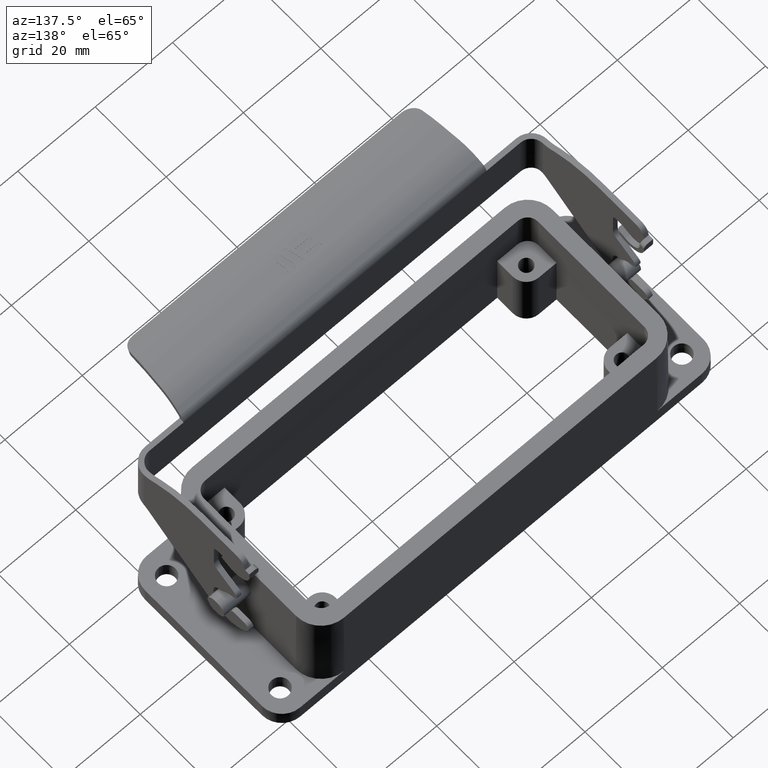
[diagram: clean part render]
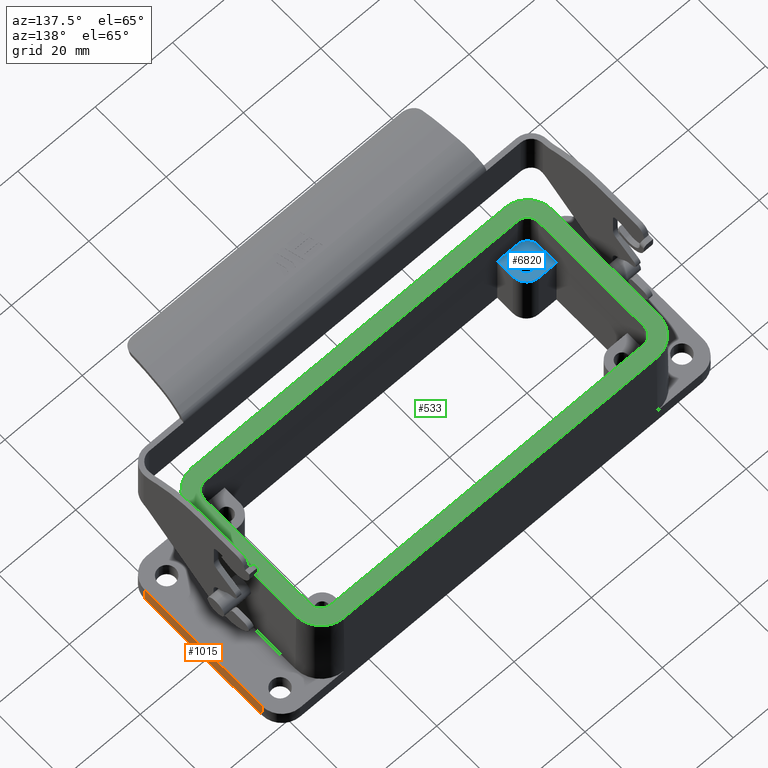
[diagram: same view with three faces highlighted in distinct colors, each labeled with its STEP entity id]
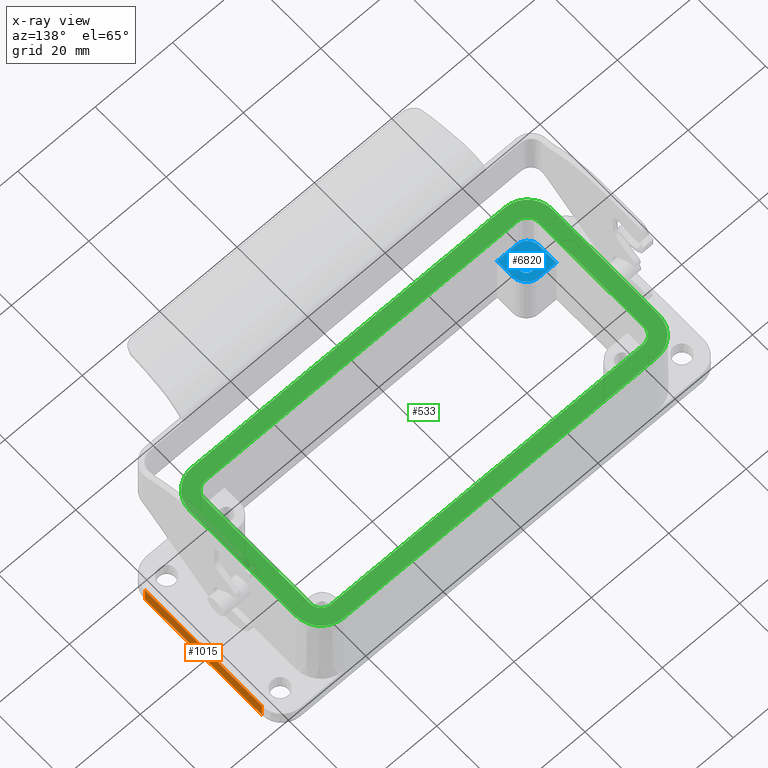
[diagram: x-ray of the same camera — body ghosted, the three highlighted faces saturated]
A machine part, auxiliary view with three faces highlighted in distinct colors.
The next image is the same camera in x-ray (body ghosted, the three faces saturated) — at least one of them is partly hidden behind the body in this view.
Their STEP definitions:

[orange] entity #1015 — the highlighted planar face has unit normal (1, 0, 0.0087).
#237 = LINE ( 'NONE', #270, #4034 ) ;
#270 = CARTESIAN_POINT ( 'NONE',  ( 1.717904678252149431, -0.8464566929133858775, -1.129921259842519676 ) ) ;
#522 = ORIENTED_EDGE ( 'NONE', *, *, #2507, .T. ) ;
#571 = LINE ( 'NONE', #2651, #3012 ) ;
#754 = PLANE ( 'NONE',  #6135 ) ;
#792 = FACE_OUTER_BOUND ( 'NONE', #2541, .T. ) ;
#1015 = ADVANCED_FACE ( 'NONE', ( #792 ), #754, .T. ) ;
#1350 = DIRECTION ( 'NONE',  ( -0.000000000000000000, -1.000000000000000000, -0.000000000000000000 ) ) ;
#1712 = CARTESIAN_POINT ( 'NONE',  ( 173.1532023753757414, 0.6496062992126196978, -19645.66929133858503 ) ) ;
#1835 = CARTESIAN_POINT ( 'NONE',  ( 1.712598425197484397, -0.6279939528609369548, -0.5218848850638660997 ) ) ;
#2133 = LINE ( 'NONE', #1712, #5036 ) ;
#2154 = LINE ( 'NONE', #5352, #5726 ) ;
#2208 = DIRECTION ( 'NONE',  ( 0.008726535488402659135, 1.068692375351810209E-18, -0.9999619230642582401 ) ) ;
#2308 = DIRECTION ( 'NONE',  ( 0.008726535498373934677, 0.000000000000000000, -0.9999619230641711987 ) ) ;
#2507 = EDGE_CURVE ( 'NONE', #4333, #5691, #571, .T. ) ;
#2541 = EDGE_LOOP ( 'NONE', ( #3339, #2938, #6055, #522 ) ) ;
#2651 = CARTESIAN_POINT ( 'NONE',  ( 1.712598425197484397, -0.6496062992125984925, -0.5218848850638660997 ) ) ;
#2843 = DIRECTION ( 'NONE',  ( 0.9999619230641713097, 0.000000000000000000, 0.008726535498373936411 ) ) ;
#2938 = ORIENTED_EDGE ( 'NONE', *, *, #5491, .F. ) ;
#3012 = VECTOR ( 'NONE', #4952, 39.37007874015748143 ) ;
#3049 = CARTESIAN_POINT ( 'NONE',  ( 1.717904678252152095, -0.6496062992125984925, -1.129921259842811665 ) ) ;
#3339 = ORIENTED_EDGE ( 'NONE', *, *, #4504, .F. ) ;
#3828 = VERTEX_POINT ( 'NONE', #5052 ) ;
#4005 = CARTESIAN_POINT ( 'NONE',  ( 1.719278988136649033, 0.6496062992125984925, -1.287401574802247373 ) ) ;
#4034 = VECTOR ( 'NONE', #1350, 39.37007874015748143 ) ;
#4333 = VERTEX_POINT ( 'NONE', #3049 ) ;
#4504 = EDGE_CURVE ( 'NONE', #7092, #5691, #2154, .T. ) ;
#4952 = DIRECTION ( 'NONE',  ( 0.008726535498373934677, 0.000000000000000000, -0.9999619230641711987 ) ) ;
#5036 = VECTOR ( 'NONE', #2208, 39.37007874015748854 ) ;
#5052 = CARTESIAN_POINT ( 'NONE',  ( 1.717904678249136063, 0.6496062992125984925, -1.129921259843103432 ) ) ;
#5352 = CARTESIAN_POINT ( 'NONE',  ( 1.719278988140460873, -0.8464566929133858775, -1.287401574803149984 ) ) ;
#5491 = EDGE_CURVE ( 'NONE', #3828, #7092, #2133, .T. ) ;
#5691 = VERTEX_POINT ( 'NONE', #5924 ) ;
#5726 = VECTOR ( 'NONE', #6395, 39.37007874015748143 ) ;
#5924 = CARTESIAN_POINT ( 'NONE',  ( 1.719278988140455100, -0.6496062992125984925, -1.287401574802698567 ) ) ;
#6055 = ORIENTED_EDGE ( 'NONE', *, *, #6333, .T. ) ;
#6135 = AXIS2_PLACEMENT_3D ( 'NONE', #1835, #2843, #2308 ) ;
#6333 = EDGE_CURVE ( 'NONE', #3828, #4333, #237, .T. ) ;
#6395 = DIRECTION ( 'NONE',  ( -0.000000000000000000, -1.000000000000000000, -0.000000000000000000 ) ) ;
#7092 = VERTEX_POINT ( 'NONE', #4005 ) ;

[blue] entity #6820 — the highlighted planar face has unit normal (0, 0, 1).
#9 = AXIS2_PLACEMENT_3D ( 'NONE', #3317, #589, #2277 ) ;
#78 = CARTESIAN_POINT ( 'NONE',  ( -2.122047244094487972, -0.5905511811039803050, -0.6377952755915824445 ) ) ;
#256 = EDGE_CURVE ( 'NONE', #3245, #343, #1824, .T. ) ;
#301 = CARTESIAN_POINT ( 'NONE',  ( -1.917322834645669660, -0.5314960629934921688, -0.6377952755905511584 ) ) ;
#334 = CIRCLE ( 'NONE', #2060, 0.1377952755905512972 ) ;
#343 = VERTEX_POINT ( 'NONE', #301 ) ;
#400 = PLANE ( 'NONE',  #1493 ) ;
#589 = DIRECTION ( 'NONE',  ( -0.000000000000000000, -0.000000000000000000, -1.000000000000000000 ) ) ;
#623 = DIRECTION ( 'NONE',  ( 0.000000000000000000, 0.000000000000000000, 1.000000000000000000 ) ) ;
#663 = ORIENTED_EDGE ( 'NONE', *, *, #256, .T. ) ;
#708 = LINE ( 'NONE', #6746, #2613 ) ;
#923 = CARTESIAN_POINT ( 'NONE',  ( -2.236063104610441332, -0.7007874015764212761, -0.6377952755905511584 ) ) ;
#1111 = ORIENTED_EDGE ( 'NONE', *, *, #6976, .F. ) ;
#1157 = EDGE_CURVE ( 'NONE', #4786, #6256, #3046, .T. ) ;
#1261 = CARTESIAN_POINT ( 'NONE',  ( -1.992125984251968740, -0.5314960629934921688, -0.6377952755905511584 ) ) ;
#1486 = AXIS2_PLACEMENT_3D ( 'NONE', #78, #2168, #4363 ) ;
#1493 = AXIS2_PLACEMENT_3D ( 'NONE', #5974, #623, #2778 ) ;
#1587 = DIRECTION ( 'NONE',  ( 1.000000000000000000, 0.000000000000000000, -0.000000000000000000 ) ) ;
#1629 = CARTESIAN_POINT ( 'NONE',  ( -2.055118110236220819, -0.3937007874029409549, -0.6377952755905511584 ) ) ;
#1824 = LINE ( 'NONE', #4018, #3381 ) ;
#1830 = VERTEX_POINT ( 'NONE', #6640 ) ;
#1964 = DIRECTION ( 'NONE',  ( 1.000000000000000000, 0.000000000000000000, 0.000000000000000000 ) ) ;
#2060 = AXIS2_PLACEMENT_3D ( 'NONE', #5478, #4328, #6519 ) ;
#2142 = VERTEX_POINT ( 'NONE', #1629 ) ;
#2168 = DIRECTION ( 'NONE',  ( -0.000000000000000000, -0.000000000000000000, 1.000000000000000000 ) ) ;
#2277 = DIRECTION ( 'NONE',  ( 1.000000000000000000, 0.000000000000000000, 0.000000000000000000 ) ) ;
#2613 = VECTOR ( 'NONE', #5668, 39.37007874015748143 ) ;
#2743 = LINE ( 'NONE', #6511, #5480 ) ;
#2751 = VERTEX_POINT ( 'NONE', #3104 ) ;
#2778 = DIRECTION ( 'NONE',  ( 1.000000000000000000, 0.000000000000000000, -0.000000000000000000 ) ) ;
#2793 = DIRECTION ( 'NONE',  ( 0.000000000000000000, 1.000000000000000000, -0.000000000000000000 ) ) ;
#3046 = LINE ( 'NONE', #923, #6601 ) ;
#3104 = CARTESIAN_POINT ( 'NONE',  ( -2.122047244094487972, -0.7045670416199419916, -0.6377952755910667459 ) ) ;
#3128 = FACE_OUTER_BOUND ( 'NONE', #5038, .T. ) ;
#3148 = EDGE_CURVE ( 'NONE', #6256, #2142, #2743, .T. ) ;
#3245 = VERTEX_POINT ( 'NONE', #3694 ) ;
#3317 = CARTESIAN_POINT ( 'NONE',  ( -2.055118110236220819, -0.5314960629934921688, -0.6377952755905511584 ) ) ;
#3381 = VECTOR ( 'NONE', #2793, 39.37007874015748143 ) ;
#3394 = EDGE_LOOP ( 'NONE', ( #5510, #5210 ) ) ;
#3618 = CARTESIAN_POINT ( 'NONE',  ( -2.055118110236220819, -0.5314960629934921688, -0.6377952755905511584 ) ) ;
#3686 = EDGE_CURVE ( 'NONE', #5931, #1830, #4684, .T. ) ;
#3694 = CARTESIAN_POINT ( 'NONE',  ( -1.917322834645669660, -0.7045670416199328878, -0.6377952755905511584 ) ) ;
#4018 = CARTESIAN_POINT ( 'NONE',  ( -1.917322834645669660, 0.7045670416172008510, -0.6377952755905511584 ) ) ;
#4328 = DIRECTION ( 'NONE',  ( 0.000000000000000000, 0.000000000000000000, -1.000000000000000000 ) ) ;
#4329 = DIRECTION ( 'NONE',  ( -0.000000000000000000, -0.000000000000000000, -1.000000000000000000 ) ) ;
#4363 = DIRECTION ( 'NONE',  ( -1.000000000000000000, 0.000000000000000000, 0.000000000000000000 ) ) ;
#4625 = ORIENTED_EDGE ( 'NONE', *, *, #1157, .F. ) ;
#4669 = CARTESIAN_POINT ( 'NONE',  ( -2.236063104609320895, -0.5905511811039803050, -0.6377952755896461046 ) ) ;
#4684 = CIRCLE ( 'NONE', #5365, 0.06299212598425185661 ) ;
#4786 = VERTEX_POINT ( 'NONE', #4669 ) ;
#5038 = EDGE_LOOP ( 'NONE', ( #663, #1111, #6259, #4625, #5838, #6689 ) ) ;
#5131 = EDGE_CURVE ( 'NONE', #3245, #2751, #708, .T. ) ;
#5210 = ORIENTED_EDGE ( 'NONE', *, *, #6848, .T. ) ;
#5293 = CIRCLE ( 'NONE', #9, 0.06299212598425185661 ) ;
#5330 = FACE_BOUND ( 'NONE', #3394, .T. ) ;
#5365 = AXIS2_PLACEMENT_3D ( 'NONE', #3618, #4329, #1964 ) ;
#5478 = CARTESIAN_POINT ( 'NONE',  ( -2.055118110236220819, -0.5314960629934921688, -0.6377952755905511584 ) ) ;
#5480 = VECTOR ( 'NONE', #1587, 39.37007874015748143 ) ;
#5510 = ORIENTED_EDGE ( 'NONE', *, *, #3686, .T. ) ;
#5570 = CARTESIAN_POINT ( 'NONE',  ( -2.236063104610441332, -0.3937007874029409549, -0.6377952755905511584 ) ) ;
#5668 = DIRECTION ( 'NONE',  ( -1.000000000000000000, 0.000000000000000000, -0.000000000000000000 ) ) ;
#5782 = DIRECTION ( 'NONE',  ( 0.000000000000000000, 1.000000000000000000, 0.000000000000000000 ) ) ;
#5838 = ORIENTED_EDGE ( 'NONE', *, *, #6907, .T. ) ;
#5931 = VERTEX_POINT ( 'NONE', #1261 ) ;
#5974 = CARTESIAN_POINT ( 'NONE',  ( -3.106299212598425896, 0.5314960629921260393, -0.6377952755905511584 ) ) ;
#6256 = VERTEX_POINT ( 'NONE', #5570 ) ;
#6259 = ORIENTED_EDGE ( 'NONE', *, *, #3148, .F. ) ;
#6511 = CARTESIAN_POINT ( 'NONE',  ( 0.3699213723269763610, -0.3937007874029409549, -0.6377952755905511584 ) ) ;
#6519 = DIRECTION ( 'NONE',  ( -1.000000000000000000, 0.000000000000000000, 0.000000000000000000 ) ) ;
#6601 = VECTOR ( 'NONE', #5782, 39.37007874015748143 ) ;
#6640 = CARTESIAN_POINT ( 'NONE',  ( -2.118110236220472675, -0.5314960629934921688, -0.6377952755905511584 ) ) ;
#6689 = ORIENTED_EDGE ( 'NONE', *, *, #5131, .F. ) ;
#6746 = CARTESIAN_POINT ( 'NONE',  ( -2.106299212598425008, -0.7045670416199328878, -0.6377952755905511584 ) ) ;
#6820 = ADVANCED_FACE ( 'NONE', ( #3128, #5330 ), #400, .T. ) ;
#6848 = EDGE_CURVE ( 'NONE', #1830, #5931, #5293, .T. ) ;
#6887 = CIRCLE ( 'NONE', #1486, 0.1140158605115889484 ) ;
#6907 = EDGE_CURVE ( 'NONE', #4786, #2751, #6887, .T. ) ;
#6976 = EDGE_CURVE ( 'NONE', #2142, #343, #334, .T. ) ;

[green] entity #533 — the highlighted planar face has unit normal (0, 0, -1).
#15 = DIRECTION ( 'NONE',  ( 0.000000000000000000, 1.000000000000000000, 0.000000000000000000 ) ) ;
#42 = CARTESIAN_POINT ( 'NONE',  ( 4.217973302217638463E-16, 0.8464566929134409445, -0.2047244094488189226 ) ) ;
#77 = DIRECTION ( 'NONE',  ( 0.000000000000000000, 0.000000000000000000, -1.000000000000000000 ) ) ;
#86 = DIRECTION ( 'NONE',  ( -1.000000000000000000, 0.000000000000000000, 0.000000000000000000 ) ) ;
#179 = DIRECTION ( 'NONE',  ( 1.000000000000000000, 0.000000000000000000, 0.000000000000000000 ) ) ;
#224 = AXIS2_PLACEMENT_3D ( 'NONE', #591, #3790, #5520 ) ;
#320 = AXIS2_PLACEMENT_3D ( 'NONE', #1654, #5963, #7128 ) ;
#324 = VERTEX_POINT ( 'NONE', #842 ) ;
#337 = EDGE_LOOP ( 'NONE', ( #1548, #2002, #472, #935, #3189, #1402, #3236, #4130 ) ) ;
#381 = VECTOR ( 'NONE', #2963, 39.37007874015748143 ) ;
#409 = EDGE_CURVE ( 'NONE', #5308, #1892, #775, .T. ) ;
#436 = AXIS2_PLACEMENT_3D ( 'NONE', #629, #5016, #86 ) ;
#469 = CARTESIAN_POINT ( 'NONE',  ( 1.316129820256129568, -0.5905511811023623769, -0.2047244094488600841 ) ) ;
#472 = ORIENTED_EDGE ( 'NONE', *, *, #1328, .F. ) ;
#495 = CARTESIAN_POINT ( 'NONE',  ( 1.062992125984252079, 0.5905511811023619329, -0.2047244094489012456 ) ) ;
#533 = ADVANCED_FACE ( 'NONE', ( #5009, #4968 ), #2127, .F. ) ;
#538 = EDGE_LOOP ( 'NONE', ( #5260, #3305, #4924, #1362, #4955, #4896, #5944, #5455 ) ) ;
#587 = EDGE_CURVE ( 'NONE', #3077, #5308, #1080, .T. ) ;
#591 = CARTESIAN_POINT ( 'NONE',  ( 1.062992125984252079, 0.5905511811012480461, -0.2047244094489012456 ) ) ;
#629 = CARTESIAN_POINT ( 'NONE',  ( -2.122047244094487972, -0.5905511811039803050, -0.2047244094489012456 ) ) ;
#705 = EDGE_CURVE ( 'NONE', #760, #3253, #3566, .T. ) ;
#760 = VERTEX_POINT ( 'NONE', #3019 ) ;
#775 = LINE ( 'NONE', #6479, #381 ) ;
#842 = CARTESIAN_POINT ( 'NONE',  ( 1.316129820257716743, 0.5905511811023620439, -0.2047244094489012456 ) ) ;
#935 = ORIENTED_EDGE ( 'NONE', *, *, #2497, .F. ) ;
#997 = EDGE_CURVE ( 'NONE', #6997, #2443, #3485, .T. ) ;
#1080 = CIRCLE ( 'NONE', #5101, 0.1064565804332241461 ) ;
#1083 = LINE ( 'NONE', #2053, #5034 ) ;
#1218 = EDGE_CURVE ( 'NONE', #3419, #3077, #1430, .T. ) ;
#1328 = EDGE_CURVE ( 'NONE', #324, #4127, #7035, .T. ) ;
#1362 = ORIENTED_EDGE ( 'NONE', *, *, #1218, .F. ) ;
#1399 = CARTESIAN_POINT ( 'NONE',  ( 1.062992125984252079, 0.8436888753742396441, -0.2047244094488600563 ) ) ;
#1402 = ORIENTED_EDGE ( 'NONE', *, *, #5675, .F. ) ;
#1415 = CARTESIAN_POINT ( 'NONE',  ( -2.375184938367953080, -0.5905511811023620439, -0.2047244094489012456 ) ) ;
#1430 = LINE ( 'NONE', #2577, #5336 ) ;
#1434 = CARTESIAN_POINT ( 'NONE',  ( -2.122047244094487972, -0.8436888753742398661, -0.2047244094488600563 ) ) ;
#1467 = DIRECTION ( 'NONE',  ( -1.000000000000000000, 1.924621274617202357E-15, 0.000000000000000000 ) ) ;
#1538 = DIRECTION ( 'NONE',  ( 0.000000000000000000, 1.000000000000000000, -2.697986170617568225E-16 ) ) ;
#1548 = ORIENTED_EDGE ( 'NONE', *, *, #705, .F. ) ;
#1569 = DIRECTION ( 'NONE',  ( -0.000000000000000000, -1.000000000000000000, -0.000000000000000000 ) ) ;
#1586 = DIRECTION ( 'NONE',  ( 0.000000000000000000, 2.614591263847492973E-16, -1.000000000000000000 ) ) ;
#1654 = CARTESIAN_POINT ( 'NONE',  ( -2.122047244094487972, 0.5905511811023624880, -0.2047244094489012456 ) ) ;
#1804 = DIRECTION ( 'NONE',  ( -0.000000000000000000, -0.000000000000000000, 1.000000000000000000 ) ) ;
#1892 = VERTEX_POINT ( 'NONE', #3324 ) ;
#2002 = ORIENTED_EDGE ( 'NONE', *, *, #4025, .F. ) ;
#2009 = VERTEX_POINT ( 'NONE', #1415 ) ;
#2053 = CARTESIAN_POINT ( 'NONE',  ( -2.375184938366365905, 0.8464566929134409445, -0.2047244094488189226 ) ) ;
#2110 = VECTOR ( 'NONE', #179, 39.37007874015748143 ) ;
#2127 = PLANE ( 'NONE',  #4416 ) ;
#2149 = DIRECTION ( 'NONE',  ( -0.000000000000000000, -2.614591263847289841E-16, -1.000000000000000000 ) ) ;
#2210 = CARTESIAN_POINT ( 'NONE',  ( -2.122047244094487972, -0.6970077615329103304, -0.2047244094488600841 ) ) ;
#2240 = DIRECTION ( 'NONE',  ( -1.000000000000000000, 0.000000000000000000, -0.000000000000000000 ) ) ;
#2301 = CIRCLE ( 'NONE', #224, 0.1064565804332444909 ) ;
#2415 = EDGE_CURVE ( 'NONE', #6478, #4019, #4267, .T. ) ;
#2443 = VERTEX_POINT ( 'NONE', #1399 ) ;
#2457 = VECTOR ( 'NONE', #5891, 39.37007874015748143 ) ;
#2497 = EDGE_CURVE ( 'NONE', #2443, #324, #4404, .T. ) ;
#2531 = VECTOR ( 'NONE', #15, 39.37007874015748143 ) ;
#2577 = CARTESIAN_POINT ( 'NONE',  ( 4.217973302217638463E-16, 0.6970077615301771834, -0.2047244094488189226 ) ) ;
#2618 = CIRCLE ( 'NONE', #436, 0.1064565804332241461 ) ;
#2685 = CARTESIAN_POINT ( 'NONE',  ( 1.316129820256129790, 0.8464566929134409445, -0.2047244094488189226 ) ) ;
#2876 = CARTESIAN_POINT ( 'NONE',  ( 2.025989114257429335, 0.8436888753742392000, -0.2047244094488188948 ) ) ;
#2884 = DIRECTION ( 'NONE',  ( -1.000000000000000000, 2.566161699490093683E-15, 0.000000000000000000 ) ) ;
#2963 = DIRECTION ( 'NONE',  ( -0.000000000000000000, -1.000000000000000000, -0.000000000000000000 ) ) ;
#2980 = CARTESIAN_POINT ( 'NONE',  ( 1.169448706415349593, 0.5905511811012480461, -0.2047244094489012456 ) ) ;
#3019 = CARTESIAN_POINT ( 'NONE',  ( 1.062992125984252079, -0.8436888753758273740, -0.2047244094489013011 ) ) ;
#3077 = VERTEX_POINT ( 'NONE', #3276 ) ;
#3181 = CIRCLE ( 'NONE', #4112, 0.2531376942750159231 ) ;
#3189 = ORIENTED_EDGE ( 'NONE', *, *, #997, .F. ) ;
#3236 = ORIENTED_EDGE ( 'NONE', *, *, #4097, .F. ) ;
#3241 = EDGE_CURVE ( 'NONE', #3253, #2009, #6506, .T. ) ;
#3242 = VECTOR ( 'NONE', #4133, 39.37007874015748143 ) ;
#3253 = VERTEX_POINT ( 'NONE', #1434 ) ;
#3276 = CARTESIAN_POINT ( 'NONE',  ( -2.122047244094487972, 0.6970077615323105880, -0.2047244094489012456 ) ) ;
#3305 = ORIENTED_EDGE ( 'NONE', *, *, #409, .F. ) ;
#3324 = CARTESIAN_POINT ( 'NONE',  ( -2.228503824525550847, -0.5905511811039803050, -0.2047244094489012456 ) ) ;
#3419 = VERTEX_POINT ( 'NONE', #5464 ) ;
#3485 = LINE ( 'NONE', #2876, #2110 ) ;
#3566 = LINE ( 'NONE', #4205, #2457 ) ;
#3624 = DIRECTION ( 'NONE',  ( -1.000000000000000000, 0.000000000000000000, -0.000000000000000000 ) ) ;
#3658 = CARTESIAN_POINT ( 'NONE',  ( 4.217973302217638463E-16, -0.6970077615329096643, -0.2047244094488189226 ) ) ;
#3781 = CARTESIAN_POINT ( 'NONE',  ( 1.062992125984252079, -0.5905511811023624880, -0.2047244094489012456 ) ) ;
#3790 = DIRECTION ( 'NONE',  ( 0.000000000000000000, 0.000000000000000000, 1.000000000000000000 ) ) ;
#4019 = VERTEX_POINT ( 'NONE', #4395 ) ;
#4025 = EDGE_CURVE ( 'NONE', #4127, #760, #3181, .T. ) ;
#4097 = EDGE_CURVE ( 'NONE', #2009, #6266, #1083, .T. ) ;
#4112 = AXIS2_PLACEMENT_3D ( 'NONE', #3781, #1586, #5929 ) ;
#4127 = VERTEX_POINT ( 'NONE', #469 ) ;
#4130 = ORIENTED_EDGE ( 'NONE', *, *, #3241, .F. ) ;
#4133 = DIRECTION ( 'NONE',  ( 1.000000000000000000, -0.000000000000000000, 0.000000000000000000 ) ) ;
#4195 = CARTESIAN_POINT ( 'NONE',  ( 1.062992125984252079, -0.5905511811039803050, -0.2047244094489012456 ) ) ;
#4205 = CARTESIAN_POINT ( 'NONE',  ( 4.217973302217638463E-16, -0.8436888753742401992, -0.2047244094488189226 ) ) ;
#4267 = LINE ( 'NONE', #3658, #3242 ) ;
#4281 = DIRECTION ( 'NONE',  ( 0.000000000000000000, 1.000000000000000000, 0.000000000000000000 ) ) ;
#4349 = VERTEX_POINT ( 'NONE', #2980 ) ;
#4395 = CARTESIAN_POINT ( 'NONE',  ( 1.062992125984252079, -0.6970077615329103304, -0.2047244094488600841 ) ) ;
#4404 = CIRCLE ( 'NONE', #6123, 0.2531376942750159231 ) ;
#4409 = LINE ( 'NONE', #6639, #2531 ) ;
#4416 = AXIS2_PLACEMENT_3D ( 'NONE', #42, #77, #2240 ) ;
#4896 = ORIENTED_EDGE ( 'NONE', *, *, #6500, .F. ) ;
#4915 = CIRCLE ( 'NONE', #320, 0.2531376942750362402 ) ;
#4924 = ORIENTED_EDGE ( 'NONE', *, *, #587, .F. ) ;
#4955 = ORIENTED_EDGE ( 'NONE', *, *, #7038, .F. ) ;
#4968 = FACE_BOUND ( 'NONE', #538, .T. ) ;
#5009 = FACE_OUTER_BOUND ( 'NONE', #337, .T. ) ;
#5016 = DIRECTION ( 'NONE',  ( -0.000000000000000000, -0.000000000000000000, 1.000000000000000000 ) ) ;
#5034 = VECTOR ( 'NONE', #4281, 39.37007874015748143 ) ;
#5101 = AXIS2_PLACEMENT_3D ( 'NONE', #5118, #1804, #2884 ) ;
#5114 = VECTOR ( 'NONE', #1569, 39.37007874015748143 ) ;
#5118 = CARTESIAN_POINT ( 'NONE',  ( -2.122047244094487972, 0.5905511811012480461, -0.2047244094489012456 ) ) ;
#5260 = ORIENTED_EDGE ( 'NONE', *, *, #5521, .F. ) ;
#5308 = VERTEX_POINT ( 'NONE', #5410 ) ;
#5336 = VECTOR ( 'NONE', #3624, 39.37007874015748143 ) ;
#5350 = CARTESIAN_POINT ( 'NONE',  ( -2.122047244094487972, -0.5905511811023619329, -0.2047244094489012456 ) ) ;
#5410 = CARTESIAN_POINT ( 'NONE',  ( -2.228503824523418331, 0.5905511811012480461, -0.2047244094488600841 ) ) ;
#5455 = ORIENTED_EDGE ( 'NONE', *, *, #2415, .F. ) ;
#5464 = CARTESIAN_POINT ( 'NONE',  ( 1.062992125984252079, 0.6970077615301780716, -0.2047244094488600841 ) ) ;
#5520 = DIRECTION ( 'NONE',  ( -1.000000000000000000, 6.415404248724007529E-16, 0.000000000000000000 ) ) ;
#5521 = EDGE_CURVE ( 'NONE', #1892, #6478, #2618, .T. ) ;
#5675 = EDGE_CURVE ( 'NONE', #6266, #6997, #4915, .T. ) ;
#5852 = CIRCLE ( 'NONE', #5967, 0.1064565804332444909 ) ;
#5891 = DIRECTION ( 'NONE',  ( -1.000000000000000000, 0.000000000000000000, -0.000000000000000000 ) ) ;
#5900 = CARTESIAN_POINT ( 'NONE',  ( 1.169448706413181993, -0.5905511811039803050, -0.2047244094488600841 ) ) ;
#5929 = DIRECTION ( 'NONE',  ( 0.000000000000000000, 1.000000000000000000, 2.697986170617785162E-16 ) ) ;
#5944 = ORIENTED_EDGE ( 'NONE', *, *, #6142, .F. ) ;
#5963 = DIRECTION ( 'NONE',  ( -0.000000000000000000, -2.614591263847289348E-16, -1.000000000000000000 ) ) ;
#5967 = AXIS2_PLACEMENT_3D ( 'NONE', #4195, #6388, #1467 ) ;
#6123 = AXIS2_PLACEMENT_3D ( 'NONE', #495, #6535, #6575 ) ;
#6142 = EDGE_CURVE ( 'NONE', #4019, #6697, #5852, .T. ) ;
#6266 = VERTEX_POINT ( 'NONE', #6274 ) ;
#6274 = CARTESIAN_POINT ( 'NONE',  ( -2.375184938367953080, 0.5905511811023623769, -0.2047244094489012456 ) ) ;
#6388 = DIRECTION ( 'NONE',  ( 0.000000000000000000, 0.000000000000000000, 1.000000000000000000 ) ) ;
#6478 = VERTEX_POINT ( 'NONE', #2210 ) ;
#6479 = CARTESIAN_POINT ( 'NONE',  ( -2.228503824523417443, 0.8464566929134409445, -0.2047244094488189226 ) ) ;
#6500 = EDGE_CURVE ( 'NONE', #6697, #4349, #4409, .T. ) ;
#6506 = CIRCLE ( 'NONE', #6878, 0.2531376942750362402 ) ;
#6535 = DIRECTION ( 'NONE',  ( 0.000000000000000000, 2.614591263847492973E-16, -1.000000000000000000 ) ) ;
#6575 = DIRECTION ( 'NONE',  ( 0.000000000000000000, 1.000000000000000000, 2.697986170617785162E-16 ) ) ;
#6639 = CARTESIAN_POINT ( 'NONE',  ( 1.169448706413181105, 0.8464566929134409445, -0.2047244094488189226 ) ) ;
#6669 = CARTESIAN_POINT ( 'NONE',  ( -2.122047244094487972, 0.8436888753742396441, -0.2047244094488601118 ) ) ;
#6697 = VERTEX_POINT ( 'NONE', #5900 ) ;
#6878 = AXIS2_PLACEMENT_3D ( 'NONE', #5350, #2149, #1538 ) ;
#6997 = VERTEX_POINT ( 'NONE', #6669 ) ;
#7035 = LINE ( 'NONE', #2685, #5114 ) ;
#7038 = EDGE_CURVE ( 'NONE', #4349, #3419, #2301, .T. ) ;
#7128 = DIRECTION ( 'NONE',  ( 0.000000000000000000, 1.000000000000000000, -2.697986170617568225E-16 ) ) ;